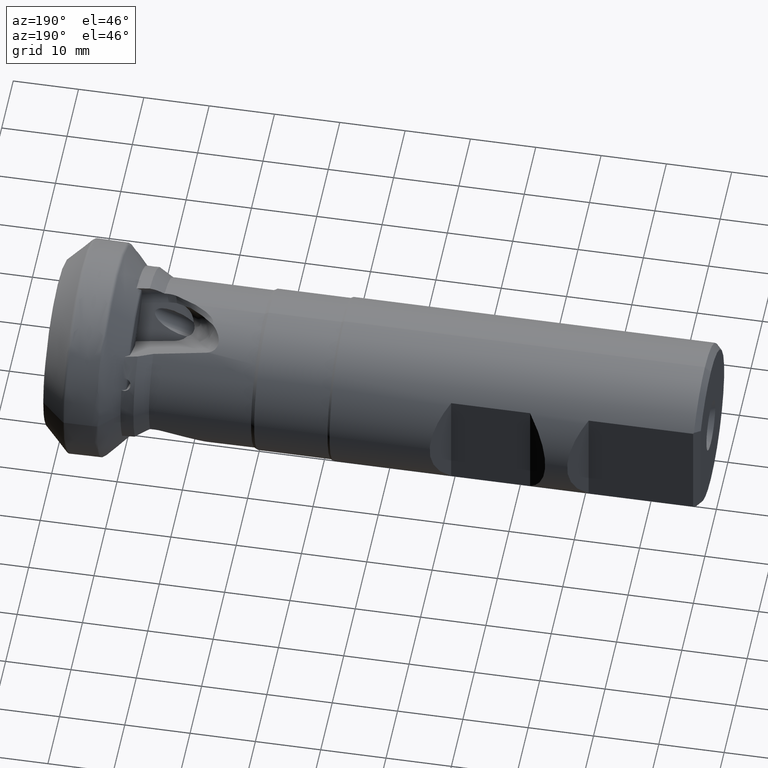
[diagram: clean part render]
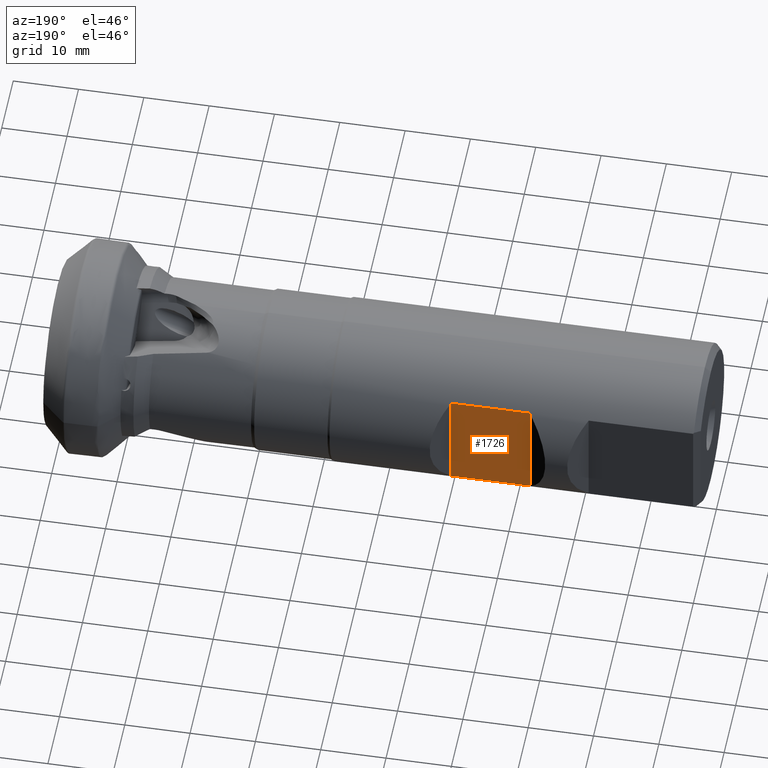
[diagram: same view with one face highlighted and labeled with its STEP entity id]
A machine part, auxiliary view. The second image highlights one B-rep face of the part: STEP entity #1726.
In plain terms, the highlighted planar face has unit normal (0, -1, 0).
Its self-contained STEP definition (entity closure, byte-faithful):
#225 = LINE ( 'NONE', #1564, #4645 ) ;
#404 = FACE_OUTER_BOUND ( 'NONE', #1642, .T. ) ;
#568 = VERTEX_POINT ( 'NONE', #2294 ) ;
#699 = DIRECTION ( 'NONE',  ( -0.0000000000000000000, -0.0000000000000000000, 1.000000000000000000 ) ) ;
#815 = CARTESIAN_POINT ( 'NONE',  ( -73.20000000000000300, 9.700000000000008200, -54.99999999999999300 ) ) ;
#1201 = VERTEX_POINT ( 'NONE', #4332 ) ;
#1205 = AXIS2_PLACEMENT_3D ( 'NONE', #815, #4153, #1644 ) ;
#1424 = CARTESIAN_POINT ( 'NONE',  ( -61.10000000000000100, 9.700000000000013500, -7.884161337770794200 ) ) ;
#1564 = CARTESIAN_POINT ( 'NONE',  ( -34.14999999999999900, 9.700000000000013500, -7.884161337770794200 ) ) ;
#1579 = EDGE_CURVE ( 'NONE', #2002, #4218, #5297, .T. ) ;
#1642 = EDGE_LOOP ( 'NONE', ( #4094, #4316, #3302, #3954 ) ) ;
#1644 = DIRECTION ( 'NONE',  ( 1.000000000000000000, 1.433655765270088600E-016, 0.0000000000000000000 ) ) ;
#1726 = ADVANCED_FACE ( 'NONE', ( #404 ), #3322, .F. ) ;
#1751 = VECTOR ( 'NONE', #2724, 1000.000000000000000 ) ;
#2002 = VERTEX_POINT ( 'NONE', #1424 ) ;
#2294 = CARTESIAN_POINT ( 'NONE',  ( -73.20000000000000300, 9.700000000000008200, 7.884161337770784400 ) ) ;
#2305 = CARTESIAN_POINT ( 'NONE',  ( -73.20000000000000300, 9.700000000000008200, -54.99999999999999300 ) ) ;
#2681 = VECTOR ( 'NONE', #5182, 1000.000000000000000 ) ;
#2724 = DIRECTION ( 'NONE',  ( -0.0000000000000000000, -0.0000000000000000000, 1.000000000000000000 ) ) ;
#2739 = EDGE_CURVE ( 'NONE', #4218, #568, #4165, .T. ) ;
#2818 = EDGE_CURVE ( 'NONE', #1201, #568, #3987, .T. ) ;
#3302 = ORIENTED_EDGE ( 'NONE', *, *, #3811, .F. ) ;
#3322 = PLANE ( 'NONE',  #1205 ) ;
#3610 = CARTESIAN_POINT ( 'NONE',  ( -61.10000000000000100, 9.700000000000009900, -54.99999999999999300 ) ) ;
#3811 = EDGE_CURVE ( 'NONE', #1201, #2002, #225, .T. ) ;
#3954 = ORIENTED_EDGE ( 'NONE', *, *, #2818, .T. ) ;
#3987 = LINE ( 'NONE', #2305, #1751 ) ;
#4071 = DIRECTION ( 'NONE',  ( 1.000000000000000000, 0.0000000000000000000, 0.0000000000000000000 ) ) ;
#4094 = ORIENTED_EDGE ( 'NONE', *, *, #2739, .F. ) ;
#4153 = DIRECTION ( 'NONE',  ( 1.433655765270088600E-016, -1.000000000000000000, 0.0000000000000000000 ) ) ;
#4165 = LINE ( 'NONE', #4767, #2681 ) ;
#4207 = CARTESIAN_POINT ( 'NONE',  ( -61.10000000000000100, 9.700000000000013500, 7.884161337770794200 ) ) ;
#4218 = VERTEX_POINT ( 'NONE', #4207 ) ;
#4316 = ORIENTED_EDGE ( 'NONE', *, *, #1579, .F. ) ;
#4332 = CARTESIAN_POINT ( 'NONE',  ( -73.20000000000000300, 9.700000000000008200, -7.884161337770812000 ) ) ;
#4645 = VECTOR ( 'NONE', #4071, 1000.000000000000000 ) ;
#4767 = CARTESIAN_POINT ( 'NONE',  ( -34.14999999999999900, 9.700000000000013500, 7.884161337770794200 ) ) ;
#4842 = VECTOR ( 'NONE', #699, 1000.000000000000000 ) ;
#5182 = DIRECTION ( 'NONE',  ( -1.000000000000000000, -0.0000000000000000000, -0.0000000000000000000 ) ) ;
#5297 = LINE ( 'NONE', #3610, #4842 ) ;